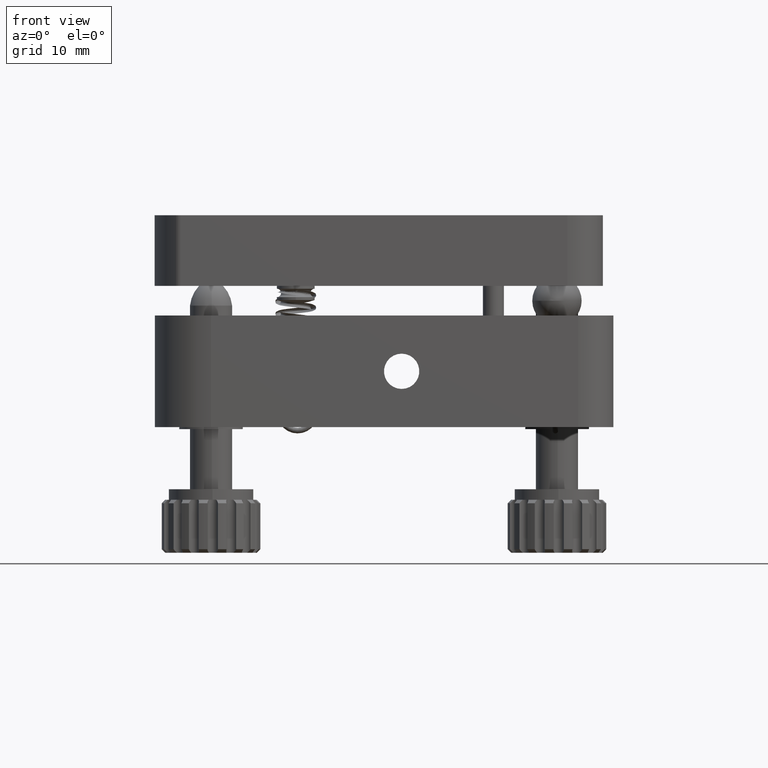
[diagram: clean part render]
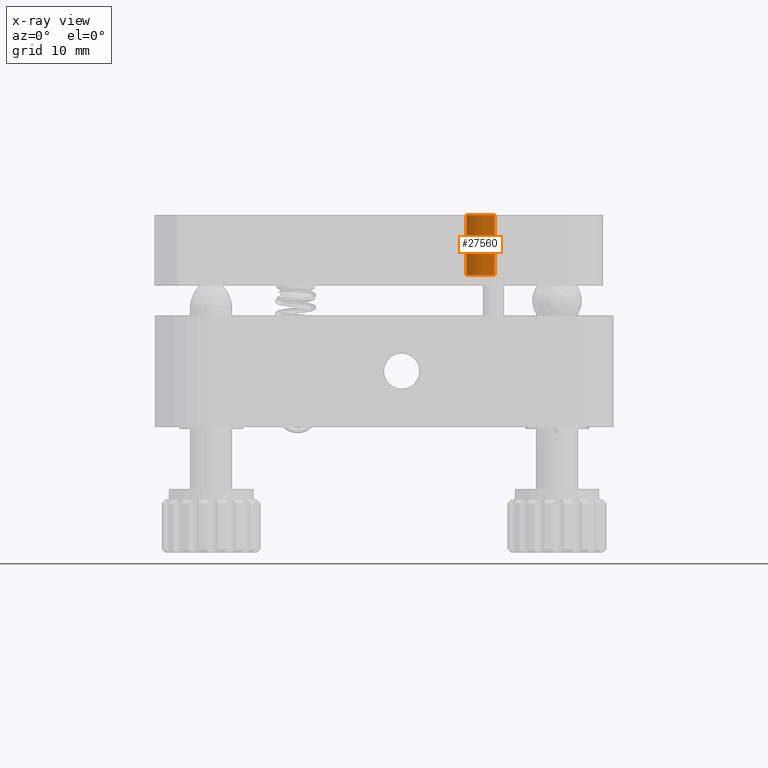
[diagram: x-ray — body ghosted, one internal face saturated and labeled with its STEP entity id]
A machine part, front view, then the same camera in x-ray: the body is ghosted and one INTERNAL B-rep face — a face not visible from any outside direction — is saturated and labeled: STEP entity #27560.
In plain terms, the highlighted cylindrical surface (edge-blend (fillet) strip) has radius 2 mm, axis along (0, 0, 1).
Its self-contained STEP definition (entity closure, byte-faithful):
#395 = DIRECTION ( 'NONE',  ( 0.0000000000000000000, 0.0000000000000000000, 1.000000000000000000 ) ) ;
#787 = CARTESIAN_POINT ( 'NONE',  ( -18.82285400142591000, 16.29608891606097000, 21.50000000000000000 ) ) ;
#3630 = DIRECTION ( 'NONE',  ( 1.000000000000000000, 0.0000000000000000000, 0.0000000000000000000 ) ) ;
#4175 = LINE ( 'NONE', #8821, #33358 ) ;
#6026 = CIRCLE ( 'NONE', #6118, 2.000000000000001800 ) ;
#6118 = AXIS2_PLACEMENT_3D ( 'NONE', #787, #20607, #3630 ) ;
#6491 = DIRECTION ( 'NONE',  ( 0.0000000000000000000, 0.0000000000000000000, 1.000000000000000000 ) ) ;
#7467 = DIRECTION ( 'NONE',  ( 1.000000000000000000, 0.0000000000000000000, 0.0000000000000000000 ) ) ;
#8169 = VERTEX_POINT ( 'NONE', #8837 ) ;
#8821 = CARTESIAN_POINT ( 'NONE',  ( -16.82285400142590600, 16.29608891606097000, 21.50000000000000000 ) ) ;
#8837 = CARTESIAN_POINT ( 'NONE',  ( -16.82285400142590600, 16.29608891606097000, 21.50000000000000000 ) ) ;
#9702 = CARTESIAN_POINT ( 'NONE',  ( -16.82285400142590600, 16.29608891606097000, 30.00000000000000400 ) ) ;
#10259 = EDGE_CURVE ( 'NONE', #16636, #13482, #28988, .T. ) ;
#13482 = VERTEX_POINT ( 'NONE', #9702 ) ;
#13583 = LINE ( 'NONE', #23459, #27682 ) ;
#14978 = AXIS2_PLACEMENT_3D ( 'NONE', #25220, #36047, #36083 ) ;
#15069 = AXIS2_PLACEMENT_3D ( 'NONE', #26945, #29922, #7467 ) ;
#16636 = VERTEX_POINT ( 'NONE', #32407 ) ;
#16842 = ORIENTED_EDGE ( 'NONE', *, *, #21972, .T. ) ;
#18325 = EDGE_CURVE ( 'NONE', #22014, #8169, #6026, .T. ) ;
#18353 = EDGE_CURVE ( 'NONE', #22014, #16636, #13583, .T. ) ;
#19938 = EDGE_LOOP ( 'NONE', ( #22360, #35789, #16842, #23261 ) ) ;
#20607 = DIRECTION ( 'NONE',  ( 0.0000000000000000000, 0.0000000000000000000, 1.000000000000000000 ) ) ;
#21972 = EDGE_CURVE ( 'NONE', #8169, #13482, #4175, .T. ) ;
#22014 = VERTEX_POINT ( 'NONE', #25844 ) ;
#22360 = ORIENTED_EDGE ( 'NONE', *, *, #18353, .F. ) ;
#23261 = ORIENTED_EDGE ( 'NONE', *, *, #10259, .F. ) ;
#23459 = CARTESIAN_POINT ( 'NONE',  ( -20.82285400142591000, 16.29608891606097000, 21.50000000000000000 ) ) ;
#25220 = CARTESIAN_POINT ( 'NONE',  ( -18.82285400142591000, 16.29608891606097000, 30.00000000000000400 ) ) ;
#25844 = CARTESIAN_POINT ( 'NONE',  ( -20.82285400142591000, 16.29608891606097000, 21.50000000000000000 ) ) ;
#26945 = CARTESIAN_POINT ( 'NONE',  ( -18.82285400142591000, 16.29608891606097000, 21.50000000000000000 ) ) ;
#27560 = ADVANCED_FACE ( 'NONE', ( #28613 ), #32563, .T. ) ;
#27682 = VECTOR ( 'NONE', #6491, 1000.000000000000000 ) ;
#28613 = FACE_OUTER_BOUND ( 'NONE', #19938, .T. ) ;
#28988 = CIRCLE ( 'NONE', #14978, 2.000000000000001800 ) ;
#29922 = DIRECTION ( 'NONE',  ( 0.0000000000000000000, 0.0000000000000000000, 1.000000000000000000 ) ) ;
#32407 = CARTESIAN_POINT ( 'NONE',  ( -20.82285400142591000, 16.29608891606097000, 30.00000000000000400 ) ) ;
#32563 = CYLINDRICAL_SURFACE ( 'NONE', #15069, 2.000000000000001800 ) ;
#33358 = VECTOR ( 'NONE', #395, 1000.000000000000000 ) ;
#35789 = ORIENTED_EDGE ( 'NONE', *, *, #18325, .T. ) ;
#36047 = DIRECTION ( 'NONE',  ( 0.0000000000000000000, 0.0000000000000000000, 1.000000000000000000 ) ) ;
#36083 = DIRECTION ( 'NONE',  ( 1.000000000000000000, 0.0000000000000000000, 0.0000000000000000000 ) ) ;